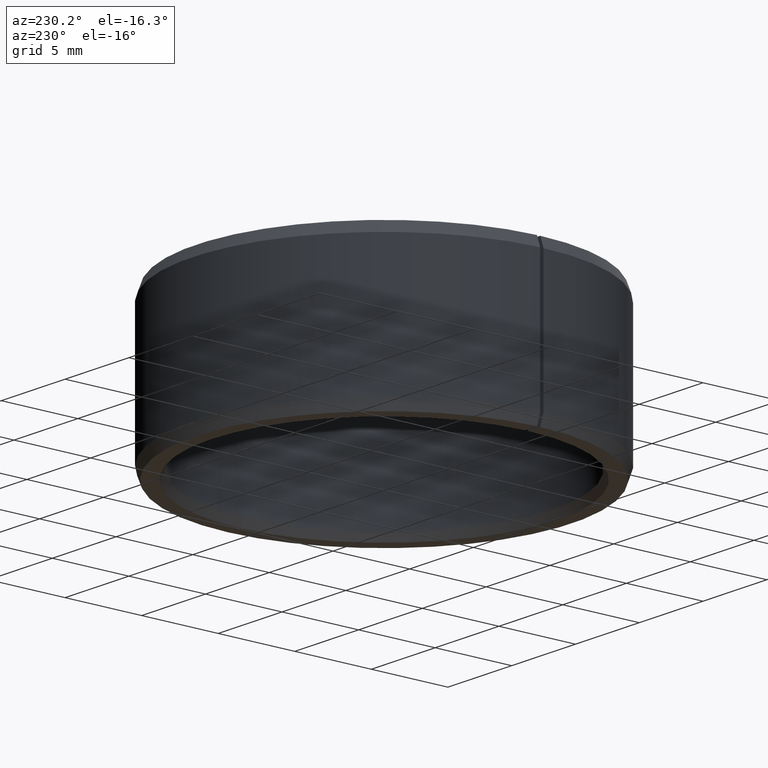
[diagram: clean part render]
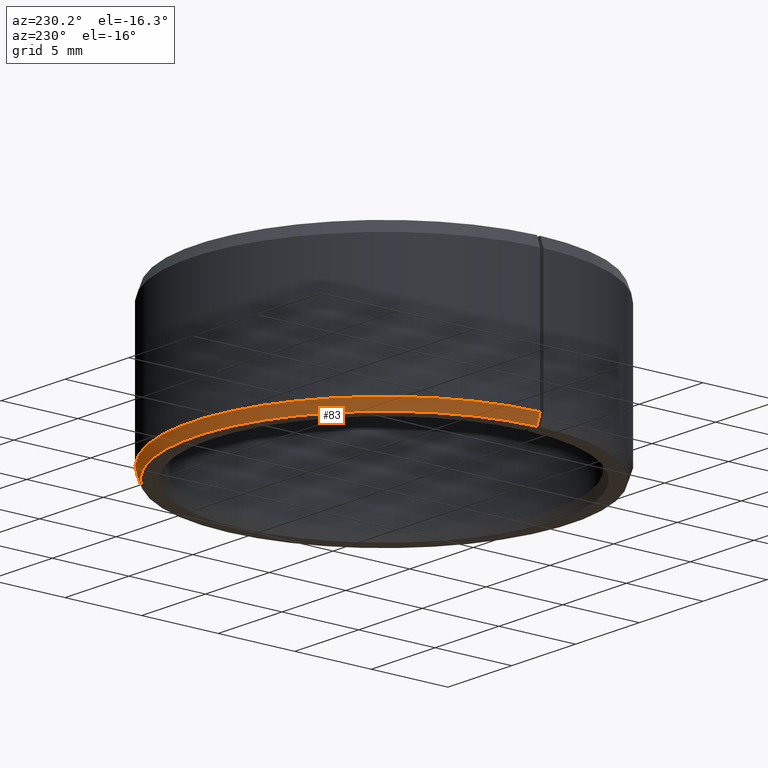
[diagram: same view with one face highlighted and labeled with its STEP entity id]
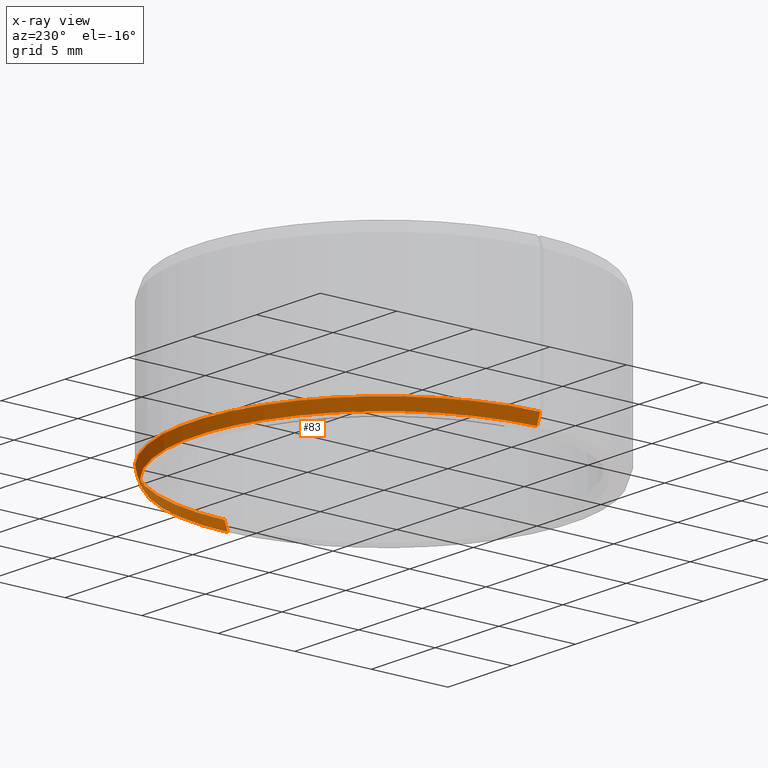
[diagram: x-ray of the same camera — body ghosted, the highlighted face saturated]
A machine part, auxiliary view. The second image highlights one B-rep face of the part: STEP entity #83.
The next image is the same camera in x-ray: the body ghosted, the highlighted face saturated — about 0% of this face is hidden behind the body in this view.
In plain terms, the highlighted conical surface has half-angle 20 deg.
Its self-contained STEP definition (entity closure, byte-faithful):
#83=ADVANCED_FACE('',(#108),#109,.T.);
#108=FACE_OUTER_BOUND('',#140,.T.);
#109=CONICAL_SURFACE('',#141,12.3726104180068,0.349065850398867);
#140=EDGE_LOOP('',(#214,#215,#216,#217));
#141=AXIS2_PLACEMENT_3D('',#218,#219,#220);
#214=ORIENTED_EDGE('',*,*,#294,.T.);
#215=ORIENTED_EDGE('',*,*,#304,.T.);
#216=ORIENTED_EDGE('',*,*,#306,.T.);
#217=ORIENTED_EDGE('',*,*,#307,.F.);
#218=CARTESIAN_POINT('',(5.45351470700869E-016,-9.50989063128085E-016,0.350000000000002));
#219=DIRECTION('',(5.48707263966375E-016,-6.09939603923743E-016,1.0));
#220=DIRECTION('',(-1.0,1.89882151931499E-015,5.48707263966376E-016));
#294=EDGE_CURVE('',#339,#344,#345,.T.);
#304=EDGE_CURVE('',#344,#359,#361,.T.);
#306=EDGE_CURVE('',#359,#363,#364,.T.);
#307=EDGE_CURVE('',#339,#363,#365,.T.);
#339=VERTEX_POINT('',#407);
#344=VERTEX_POINT('',#414);
#345=LINE('',#415,#416);
#359=VERTEX_POINT('',#434);
#361=CIRCLE('',#437,12.2452208360137);
#363=VERTEX_POINT('',#440);
#364=LINE('',#441,#442);
#365=CIRCLE('',#443,12.5);
#407=CARTESIAN_POINT('',(12.5,-2.64305454148729E-014,0.699999999999994));
#414=CARTESIAN_POINT('',(12.2452208360137,-2.54886060841094E-014,-5.33126284081167E-015));
#415=CARTESIAN_POINT('',(12.3726104180068,-2.59595757494912E-014,0.349999999999995));
#416=VECTOR('',#490,1.0);
#434=CARTESIAN_POINT('',(-12.2433558295693,0.213708570944427,8.24264543289731E-015));
#437=AXIS2_PLACEMENT_3D('',#508,#509,#510);
#440=CARTESIAN_POINT('',(-12.4980961894549,0.218155080466068,0.700000000000008));
#441=CARTESIAN_POINT('',(-12.2433558295693,0.213708570944427,8.18201915899658E-015));
#442=VECTOR('',#512,10.0);
#443=AXIS2_PLACEMENT_3D('',#513,#514,#515);
#490=DIRECTION('',(-0.342020143325671,1.26447634049497E-015,-0.939692620785908));
#508=CARTESIAN_POINT('',(3.53303928312638E-016,-7.58941520739854E-016,1.40055521273414E-015));
#509=DIRECTION('',(5.48707263966375E-016,-6.09939603923743E-016,1.0));
#510=DIRECTION('',(-1.0,1.89882151931499E-015,5.48707263966376E-016));
#512=DIRECTION('',(-0.341968052001229,0.00596907455105774,0.939692620785908));
#513=CARTESIAN_POINT('',(7.373990130891E-016,-1.14303660551632E-015,0.700000000000001));
#514=DIRECTION('',(5.48707263966375E-016,-6.09939603923743E-016,1.0));
#515=DIRECTION('',(-1.0,1.89882151931499E-015,5.48707263966376E-016));